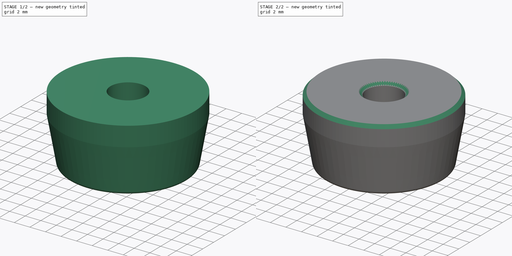
[diagram: build sequence overview — one tinted view per stage of 2, left to right]
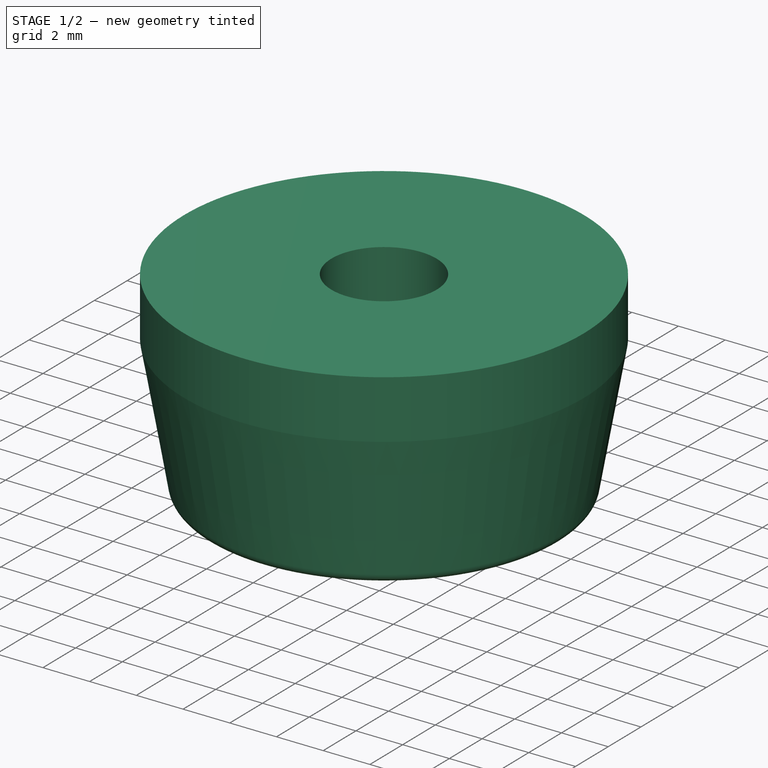
[diagram: stage 1 of 2 — iso view after this stage's code; geometry added in this stage tinted green]
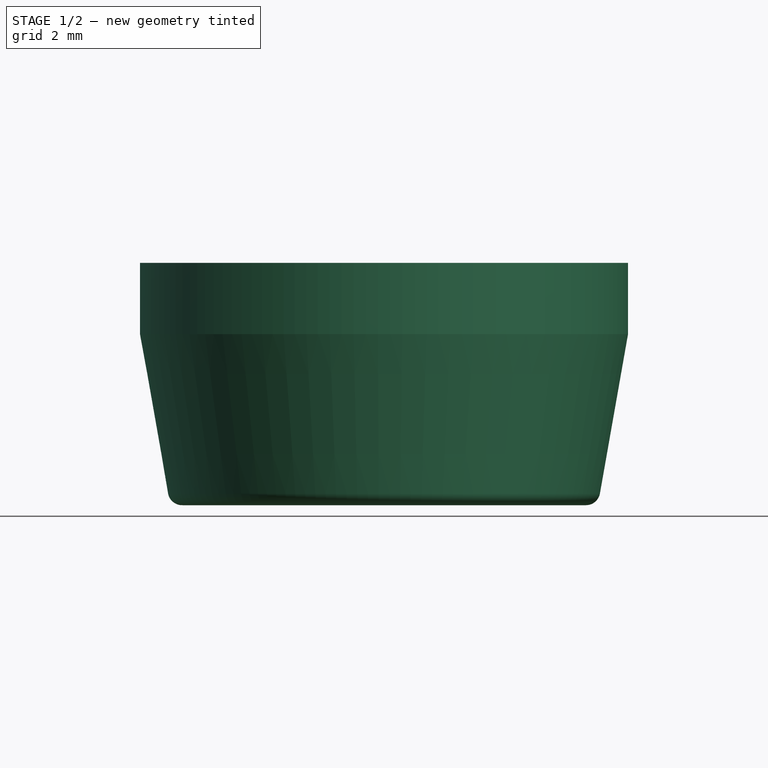
[diagram: stage 1 of 2 — front view after this stage's code; geometry added in this stage tinted green]
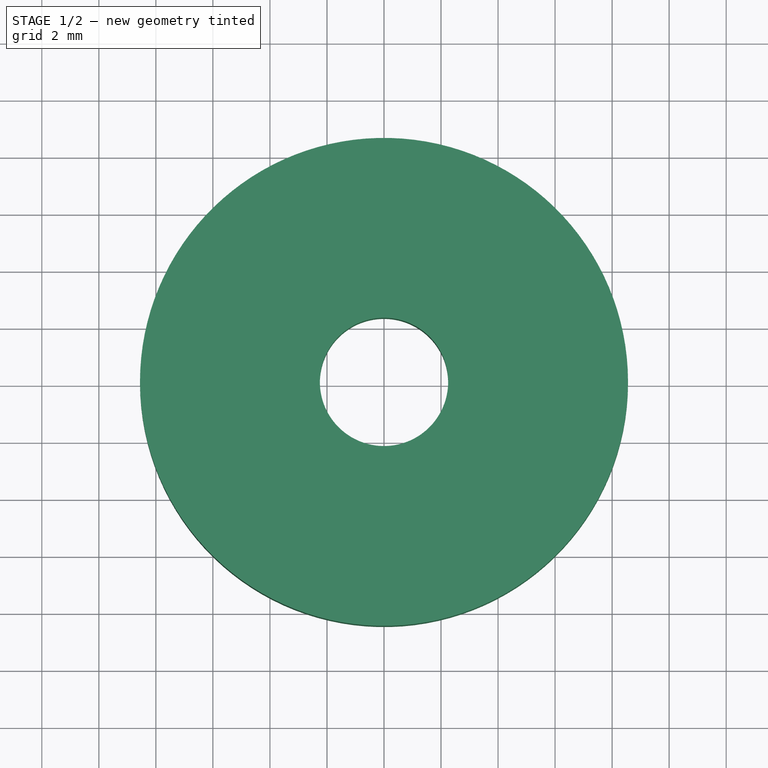
[diagram: stage 1 of 2 — top view after this stage's code; geometry added in this stage tinted green]
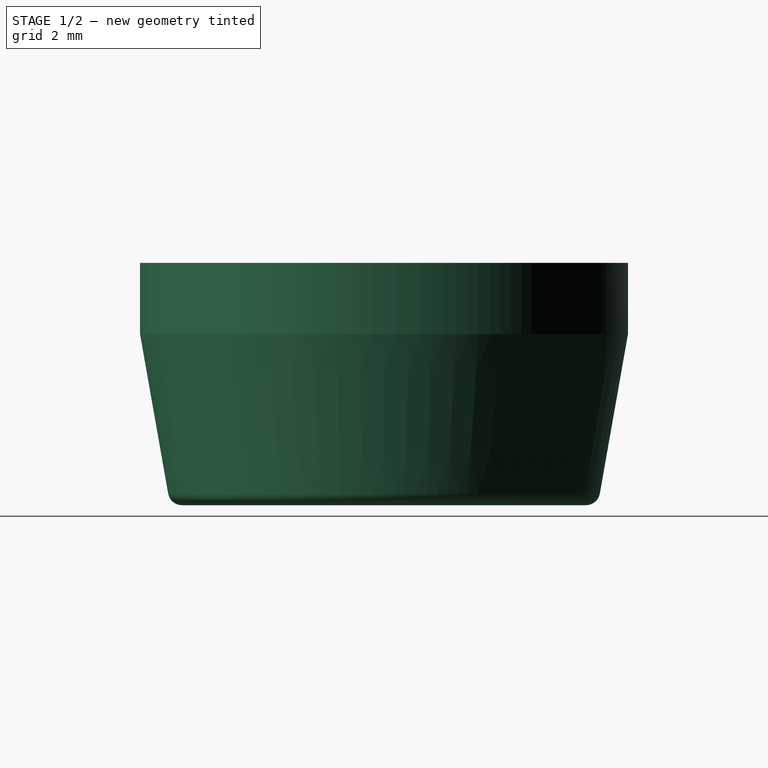
[diagram: stage 1 of 2 — right view after this stage's code; geometry added in this stage tinted green]
FCSTD DOCUMENT  (FreeCAD 0.18R14555 (Git shallow))
Label: Foot
License: All rights reserved
LicenseURL: http://en.wikipedia.org/wiki/All_rights_reserved
objects: Sketcher::SketchObject×1, PartDesign::Revolution×1, PartDesign::Fillet×1, PartDesign::Chamfer×1, PartDesign::Body×1
note: 6 computed .brp shape members not serialized (recipe doc carries the construction recipe); baked Part::Feature solids carry a one-line shape summary decoded from their .brp

FEATURE [Sketcher::SketchObject] Sketch
  MapMode = 5
  Placement = pos=(0,0,0) rot=(1,0,0;1.5708rad)
  Support = -> [XZ_Plane]
  sketch-geometry (7):
    g0: LineSegment StartX=2.25 StartY=0 StartZ=0 EndX=2.25 EndY=2.5 EndZ=0
    g1: LineSegment StartX=2.25 StartY=2.5 StartZ=0 EndX=8.55796 EndY=2.5 EndZ=0
    g2: LineSegment StartX=8.55796 StartY=2.5 StartZ=0 EndX=8.55796 EndY=0 EndZ=0
    g3: LineSegment StartX=8.55796 StartY=0 StartZ=0 EndX=7.5 EndY=-6 EndZ=0
    g4: LineSegment StartX=7.5 StartY=-6 StartZ=0 EndX=4.25 EndY=-6 EndZ=0
    g5: LineSegment StartX=4.25 StartY=-6 StartZ=0 EndX=4.25 EndY=0 EndZ=0
    g6: LineSegment StartX=4.25 StartY=0 StartZ=0 EndX=2.25 EndY=0 EndZ=0
  constraints (21):
    c: Coincident(g0,g1)
    c: Coincident(g1,g2)
    c: Coincident(g2,g3)
    c: Coincident(g3,g4)
    c: Coincident(g4,g5)
    c: Coincident(g5,g6)
    c: Horizontal(g4)
    c: Horizontal(g1)
    c: Horizontal(g6)
    c: Coincident(g0,g6)
    c: Vertical(g0)
    c: DistanceX(g0) = 2.25
    c: PointOnObject(g0,g-1)
    c: Vertical(g5)
    c: Vertical(g2)
    c: Distance(g0) = 2.5
    c: Distance(g2) = 2.5
    c: DistanceX(g5) = 4.25
    c: Distance(g5) = 6
    c: Distance(g4) = 3.25
    c: Angle(g3,g4) = 1.74533
FEATURE [PartDesign::Revolution] Revolution
  Angle = 360
  Axis = (0,2e-16,1)
  Base = (0,0,0)
  Placement = pos=(0,0,0) rot=(1,0,0;1.5708rad)
  Profile = -> Sketch
  ReferenceAxis = -> Sketch [V_Axis]
  Reversed = true
FEATURE [PartDesign::Fillet] Fillet
  Base = -> Revolution [Face5]
  BaseFeature = -> Revolution
  Placement = pos=(0,0,0) rot=(1,0,0;1.5708rad)
  Radius = 0.5
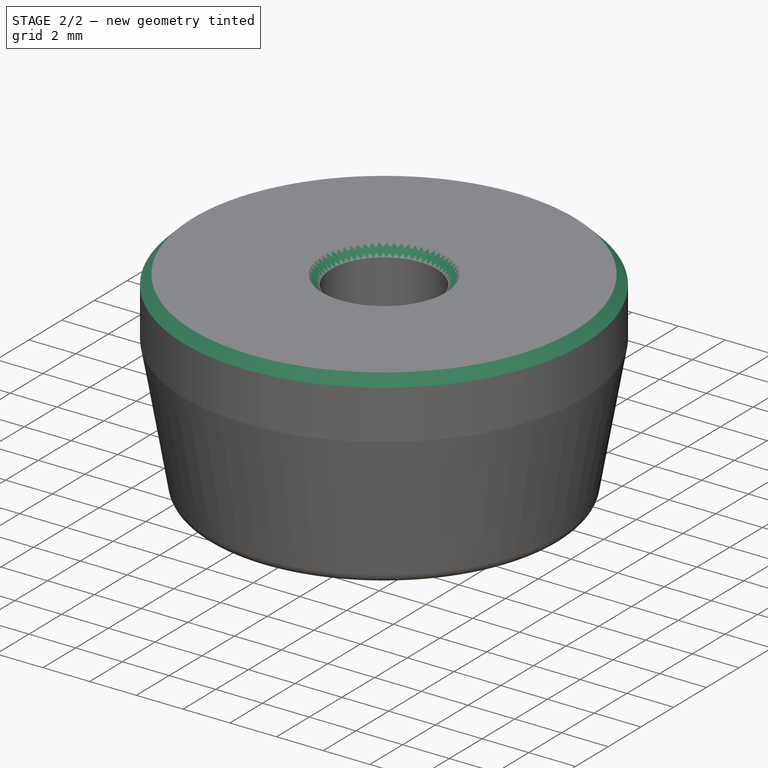
[diagram: stage 2 of 2 — iso view after this stage's code; geometry added in this stage tinted green]
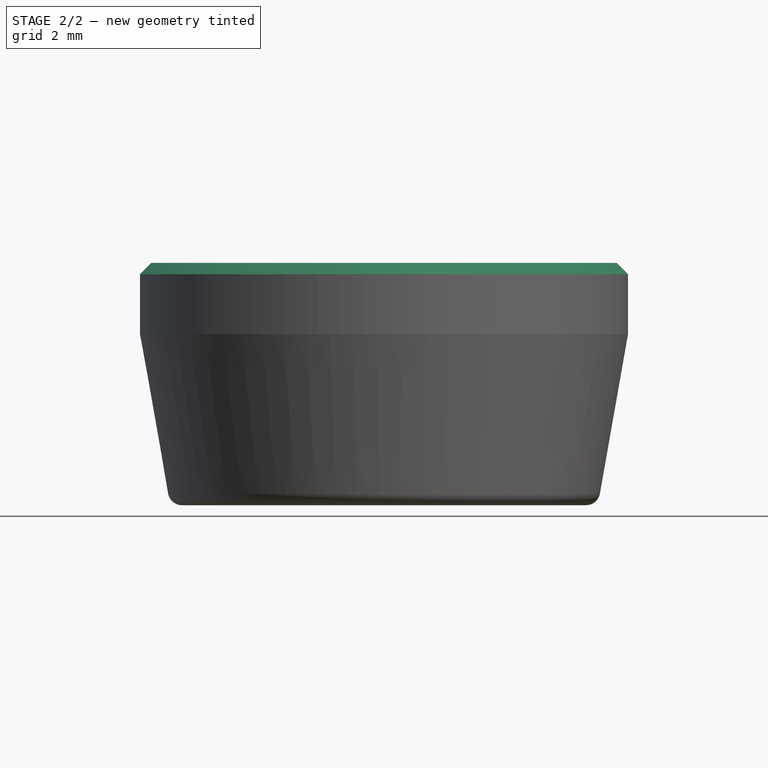
[diagram: stage 2 of 2 — front view after this stage's code; geometry added in this stage tinted green]
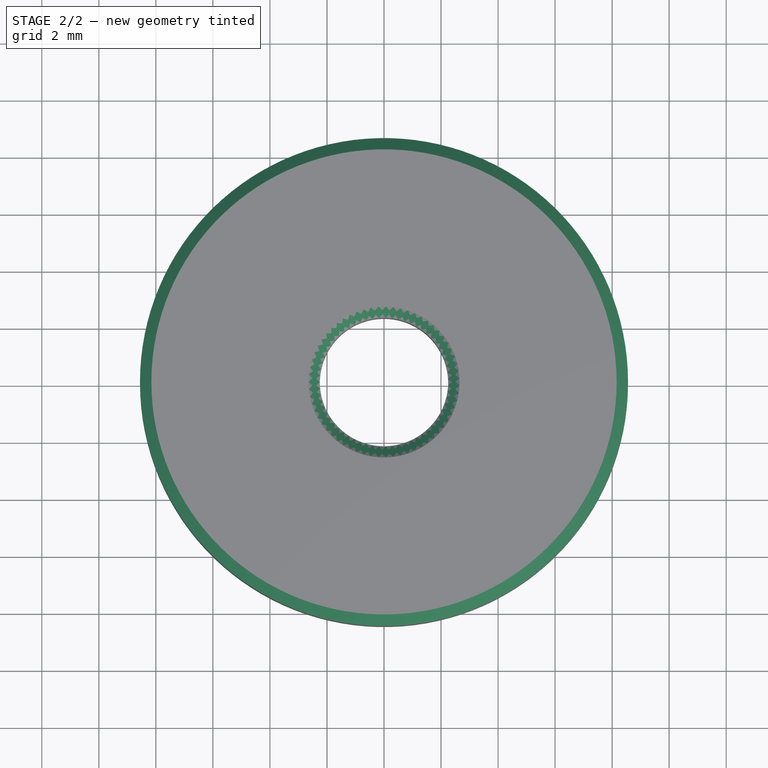
[diagram: stage 2 of 2 — top view after this stage's code; geometry added in this stage tinted green]
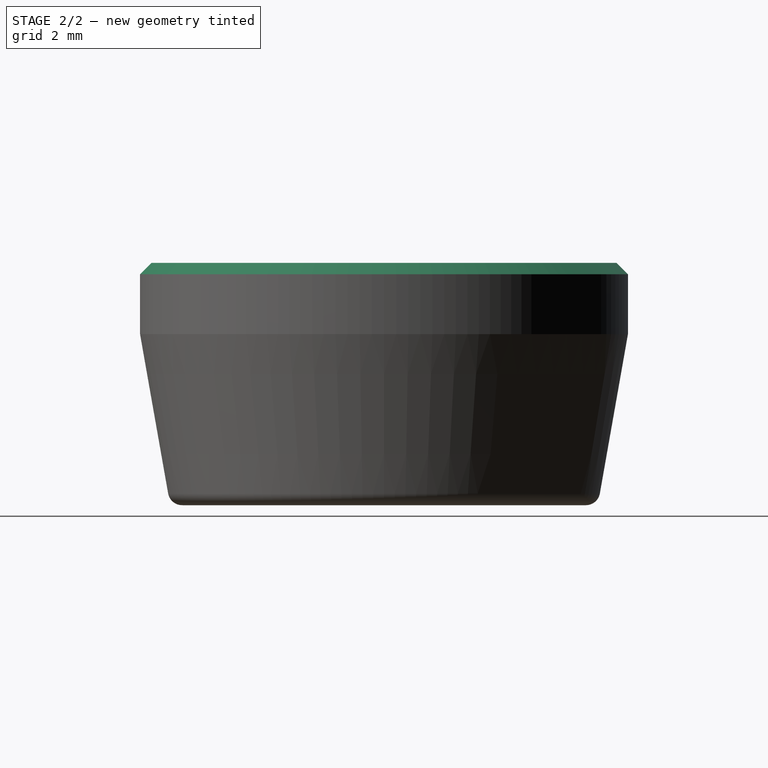
[diagram: stage 2 of 2 — right view after this stage's code; geometry added in this stage tinted green]
FEATURE [PartDesign::Chamfer] Chamfer
  Base = -> Fillet [Face5]
  BaseFeature = -> Fillet
  Placement = pos=(0,0,0) rot=(1,0,0;1.5708rad)
  Size = 0.4
FEATURE [PartDesign::Body] Body
  Group = -> [Sketch,Revolution,Fillet,Chamfer]
  Origin = -> Origin
  Tip = -> Chamfer
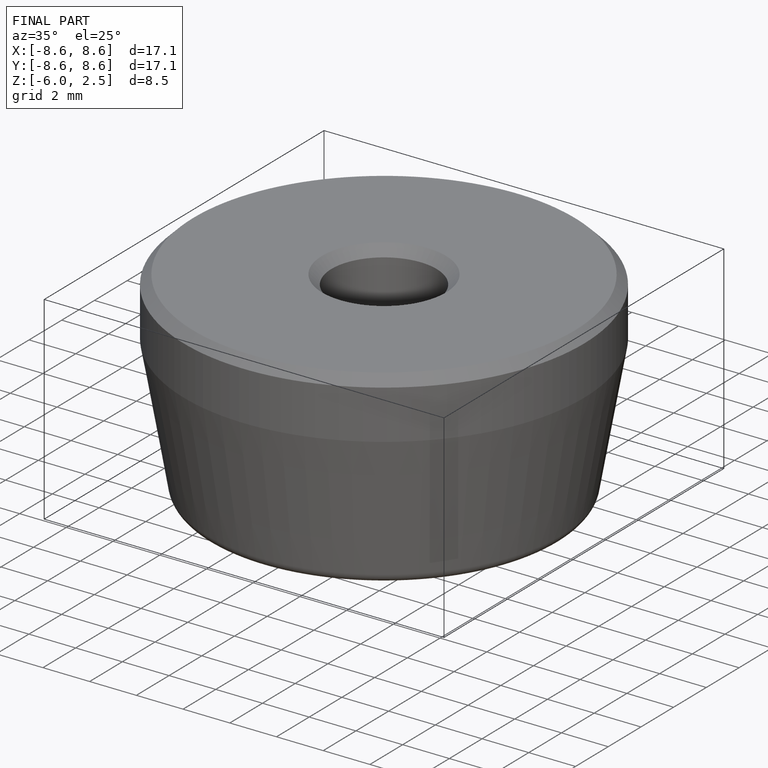
[diagram: finished part — iso view with bounding-box wireframe]
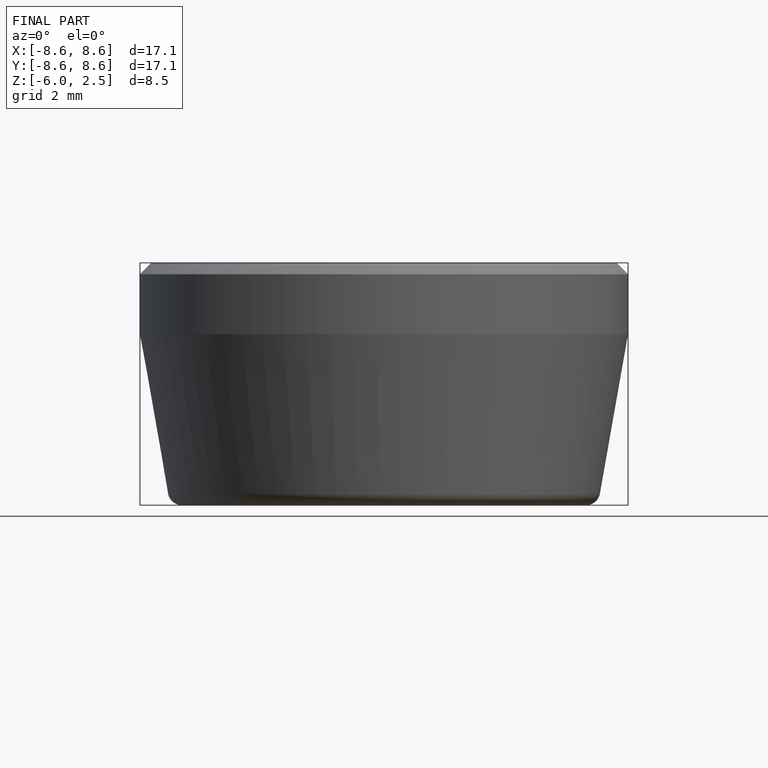
[diagram: finished part — front view with bounding-box wireframe]
